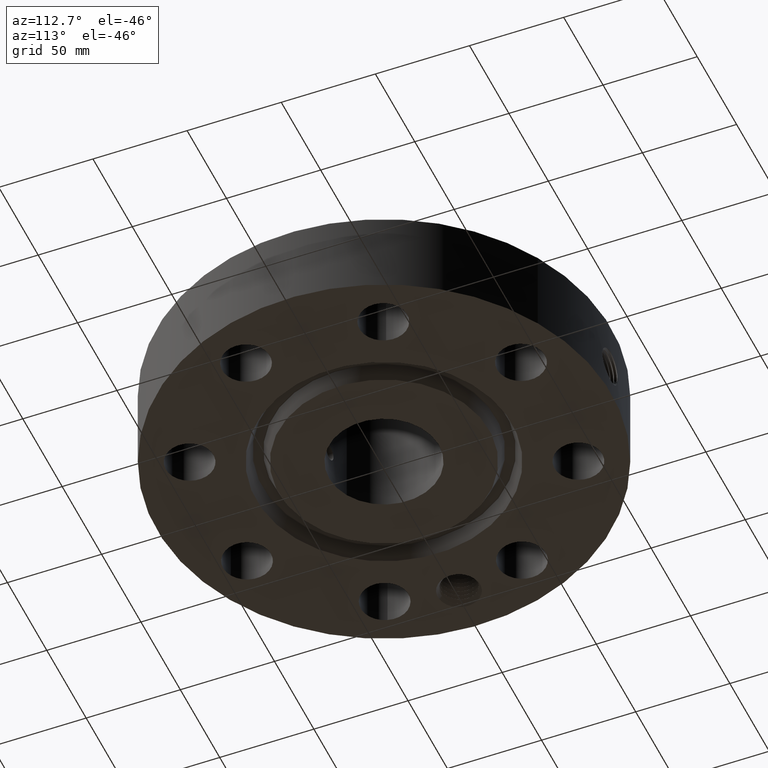
[diagram: clean part render]
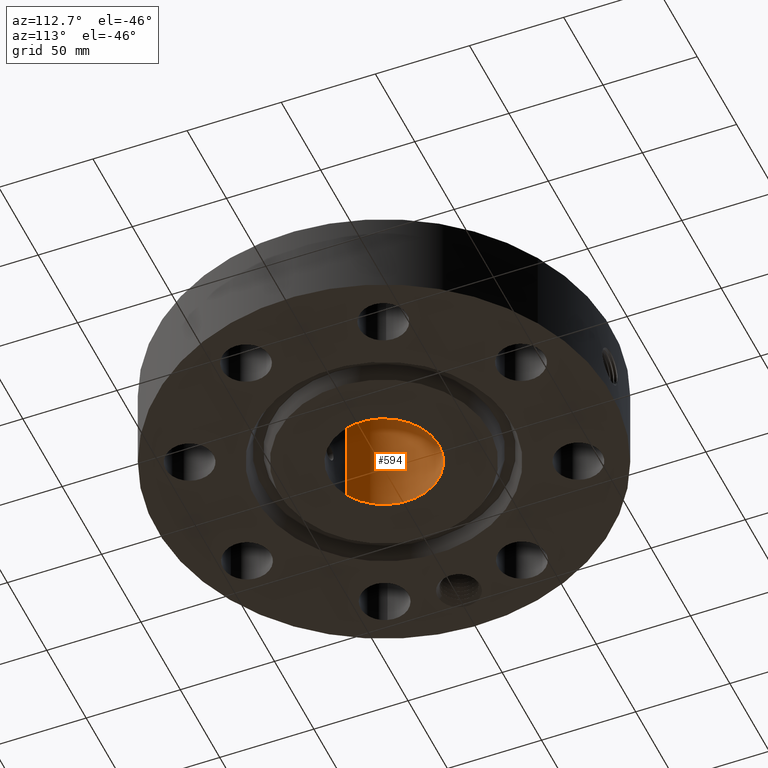
[diagram: same view with one face highlighted and labeled with its STEP entity id]
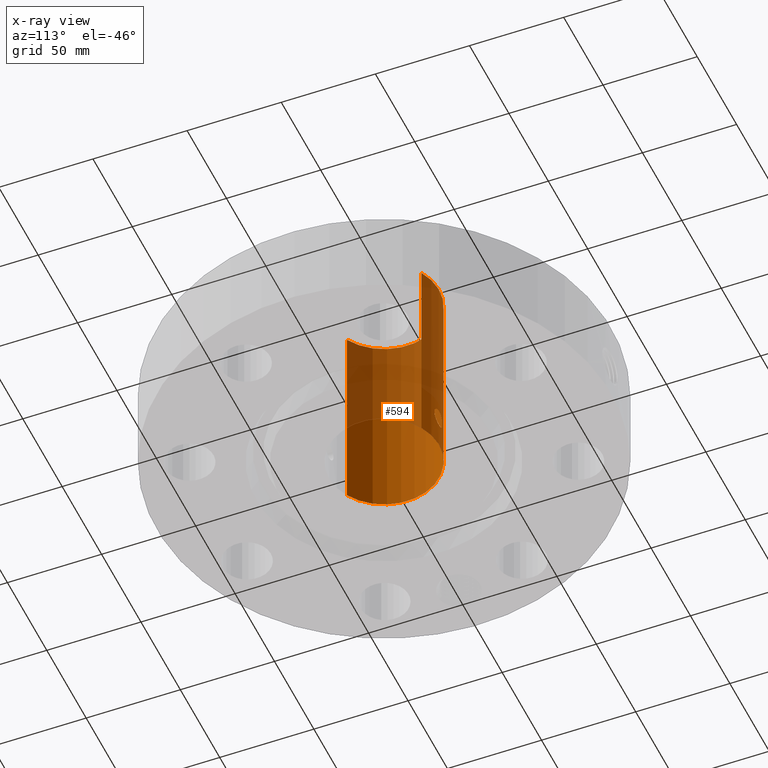
[diagram: x-ray of the same camera — body ghosted, the highlighted face saturated]
A machine part, auxiliary view. The second image highlights one B-rep face of the part: STEP entity #594.
The next image is the same camera in x-ray: the body ghosted, the highlighted face saturated — about 52% of this face is hidden behind the body in this view.
In plain terms, the highlighted cylindrical surface (partial cylindrical patch) has radius 29.21 mm, axis along (0, 0, -1).
Its self-contained STEP definition (entity closure, byte-faithful):
#232=AXIS2_PLACEMENT_3D('Cylinder Axis2P3D',#229,#230,#231) ;
#533=AXIS2_PLACEMENT_3D('Circle Axis2P3D',#531,#532,$) ;
#543=AXIS2_PLACEMENT_3D('Circle Axis2P3D',#541,#542,$) ;
#229=CARTESIAN_POINT('Axis2P3D Location',(0.,0.,2.15600000001)) ;
#238=CARTESIAN_POINT('Vertex',(0.551339369397,1.00921994618,4.31200000002)) ;
#240=CARTESIAN_POINT('Vertex',(-0.551339369397,-1.00921994618,4.31200000002)) ;
#243=CARTESIAN_POINT('Line Origine',(0.551339369397,1.00921994618,2.15600000001)) ;
#247=CARTESIAN_POINT('Vertex',(0.551339369397,1.00921994618,-6.15430716013E-015)) ;
#254=CARTESIAN_POINT('Vertex',(-0.551339369397,-1.00921994618,-6.15430716013E-015)) ;
#257=CARTESIAN_POINT('Line Origine',(-0.551339369397,-1.00921994618,2.15600000001)) ;
#531=CARTESIAN_POINT('Axis2P3D Location',(0.,0.,4.31200000002)) ;
#541=CARTESIAN_POINT('Axis2P3D Location',(0.,0.,-6.71378962923E-015)) ;
#553=CARTESIAN_POINT('Control Point',(-0.164546730355,1.13816711143,0.660107711514)) ;
#554=CARTESIAN_POINT('Control Point',(-0.153731456485,1.13973069373,0.640310485489)) ;
#555=CARTESIAN_POINT('Control Point',(-0.139948746175,1.14159213501,0.622157931053)) ;
#556=CARTESIAN_POINT('Control Point',(-0.123523720027,1.14356105809,0.606224476762)) ;
#557=CARTESIAN_POINT('Control Point',(-0.0772319416366,1.14809159051,0.573249153921)) ;
#558=CARTESIAN_POINT('Control Point',(-0.0212741450446,1.15057887466,0.55902827398)) ;
#559=CARTESIAN_POINT('Control Point',(0.0137347069302,1.15070493463,0.558335369813)) ;
#560=CARTESIAN_POINT('Control Point',(0.0702470116862,1.14856850265,0.5703522078)) ;
#561=CARTESIAN_POINT('Control Point',(0.117822070899,1.14417622941,0.601510251337)) ;
#562=CARTESIAN_POINT('Control Point',(0.134871090773,1.14221708934,0.616807466338)) ;
#563=CARTESIAN_POINT('Control Point',(0.174318947872,1.13705048297,0.664775081667)) ;
#564=CARTESIAN_POINT('Control Point',(0.192220809726,1.13381572754,0.725784323687)) ;
#565=CARTESIAN_POINT('Control Point',(0.193021554598,1.13366052048,0.766729117097)) ;
#566=CARTESIAN_POINT('Control Point',(0.18319565815,1.13547100463,0.80575565514)) ;
#567=CARTESIAN_POINT('Control Point',(0.164546730355,1.13816711143,0.839892288492)) ;
#568=CARTESIAN_POINT('Vertex',(-0.164546730355,1.13816711143,0.660107711514)) ;
#570=CARTESIAN_POINT('Vertex',(0.164546730355,1.13816711143,0.839892288492)) ;
#574=CARTESIAN_POINT('Control Point',(-0.164546730355,1.13816711143,0.660107711514)) ;
#575=CARTESIAN_POINT('Control Point',(-0.180603795598,1.13584571455,0.689499972288)) ;
#576=CARTESIAN_POINT('Control Point',(-0.190119886713,1.13418087601,0.722517374899)) ;
#577=CARTESIAN_POINT('Control Point',(-0.191966664822,1.13383851551,0.757267854883)) ;
#578=CARTESIAN_POINT('Control Point',(-0.181952781185,1.13567532067,0.813889504852)) ;
#579=CARTESIAN_POINT('Control Point',(-0.152667917432,1.13992420936,0.862333944527)) ;
#580=CARTESIAN_POINT('Control Point',(-0.138052291845,1.14186019717,0.879872317212)) ;
#581=CARTESIAN_POINT('Control Point',(-0.0955565369792,1.14662877742,0.917545856291)) ;
#582=CARTESIAN_POINT('Control Point',(-0.0414960015268,1.14998627629,0.9376195459)) ;
#583=CARTESIAN_POINT('Control Point',(-0.00673584354181,1.15078720412,0.942054333595)) ;
#584=CARTESIAN_POINT('Control Point',(0.0563569065643,1.14955139717,0.935522439786)) ;
#585=CARTESIAN_POINT('Control Point',(0.1111837923,1.1450007406,0.904910167456)) ;
#586=CARTESIAN_POINT('Control Point',(0.133123116796,1.14250798461,0.886508336724)) ;
#587=CARTESIAN_POINT('Control Point',(0.151121241433,1.14010805691,0.864467481122)) ;
#588=CARTESIAN_POINT('Control Point',(0.164546730355,1.13816711143,0.839892288492)) ;
#230=DIRECTION('Axis2P3D Direction',(0.,0.,-0.0393700787402)) ;
#231=DIRECTION('Axis2P3D XDirection',(-0.0188750212049,-0.0345504945626,0.)) ;
#244=DIRECTION('Vector Direction',(0.,0.,-0.0393700787402)) ;
#258=DIRECTION('Vector Direction',(0.,0.,-0.0393700787402)) ;
#532=DIRECTION('Axis2P3D Direction',(0.,0.,-0.0393700787402)) ;
#542=DIRECTION('Axis2P3D Direction',(0.,0.,-0.0393700787402)) ;
#245=VECTOR('Line Direction',#244,0.0393700787402) ;
#259=VECTOR('Line Direction',#258,0.0393700787402) ;
#547=ORIENTED_EDGE('',*,*,#535,.F.) ;
#548=ORIENTED_EDGE('',*,*,#261,.T.) ;
#549=ORIENTED_EDGE('',*,*,#545,.T.) ;
#550=ORIENTED_EDGE('',*,*,#249,.F.) ;
#591=ORIENTED_EDGE('',*,*,#572,.F.) ;
#592=ORIENTED_EDGE('',*,*,#589,.T.) ;
#593=FACE_BOUND('',#590,.T.) ;
#594=ADVANCED_FACE('PartBody',(#551,#593),#233,.F.) ;
#552=B_SPLINE_CURVE_WITH_KNOTS('',5,(#553,#554,#555,#556,#557,#558,#559,#560,#561,#562,#563,#564,#565,#566,#567),.UNSPECIFIED.,.F.,.U.,(6,3,3,3,6),(0.,4.06140002121,10.1258632573,14.1909067091,21.1940354928),.UNSPECIFIED.) ;
#573=B_SPLINE_CURVE_WITH_KNOTS('',5,(#574,#575,#576,#577,#578,#579,#580,#581,#582,#583,#584,#585,#586,#587,#588),.UNSPECIFIED.,.F.,.U.,(6,3,3,3,6),(0.,6.02982096456,10.0815961313,16.1525156593,21.1941153128),.UNSPECIFIED.) ;
#534=CIRCLE('generated circle',#533,1.15) ;
#544=CIRCLE('generated circle',#543,1.15) ;
#233=CYLINDRICAL_SURFACE('generated cylinder',#232,1.15) ;
#249=EDGE_CURVE('',#239,#248,#246,.T.) ;
#261=EDGE_CURVE('',#241,#255,#260,.T.) ;
#535=EDGE_CURVE('',#241,#239,#534,.T.) ;
#545=EDGE_CURVE('',#255,#248,#544,.T.) ;
#572=EDGE_CURVE('',#569,#571,#552,.T.) ;
#589=EDGE_CURVE('',#569,#571,#573,.T.) ;
#546=EDGE_LOOP('',(#547,#548,#549,#550)) ;
#590=EDGE_LOOP('',(#591,#592)) ;
#551=FACE_OUTER_BOUND('',#546,.T.) ;
#246=LINE('Line',#243,#245) ;
#260=LINE('Line',#257,#259) ;
#239=VERTEX_POINT('',#238) ;
#241=VERTEX_POINT('',#240) ;
#248=VERTEX_POINT('',#247) ;
#255=VERTEX_POINT('',#254) ;
#569=VERTEX_POINT('',#568) ;
#571=VERTEX_POINT('',#570) ;